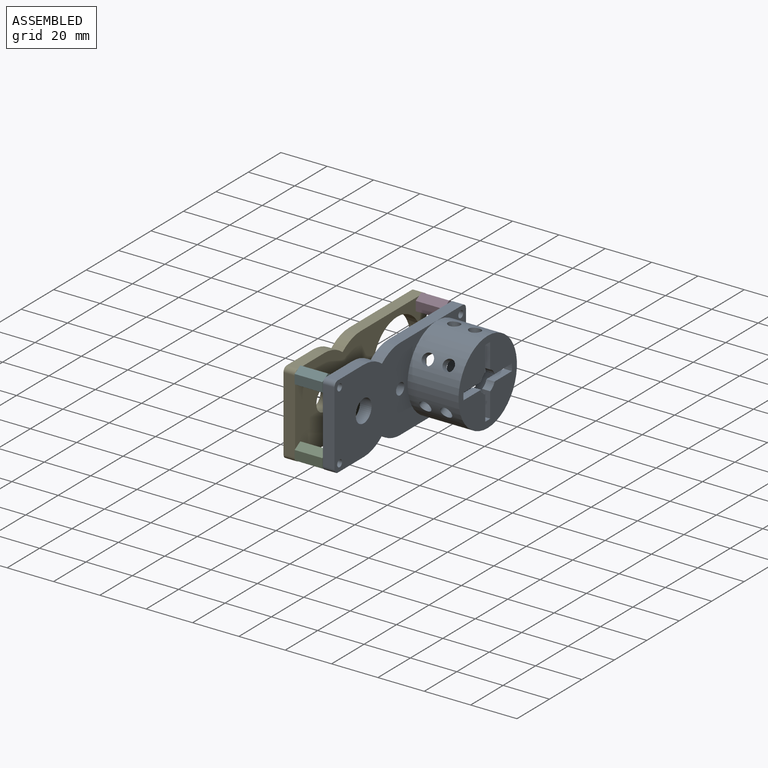
[diagram: assembled view]
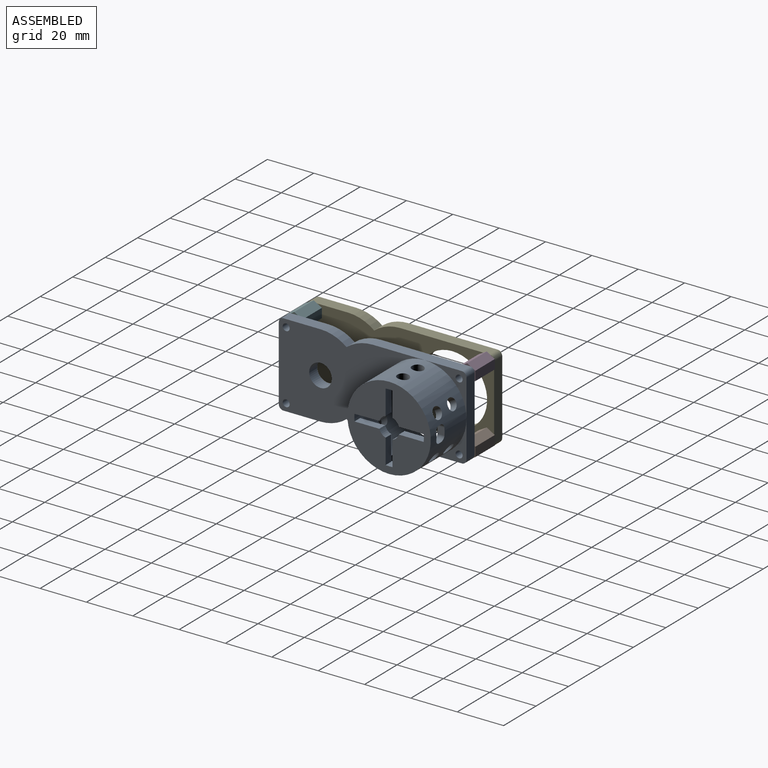
[diagram: assembled view, second angle]
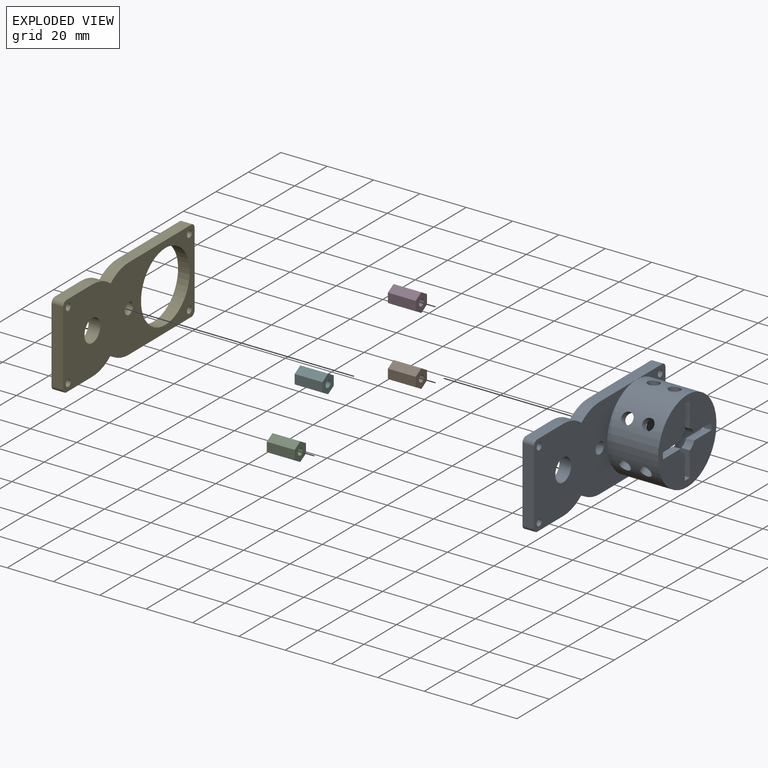
[diagram: exploded view]
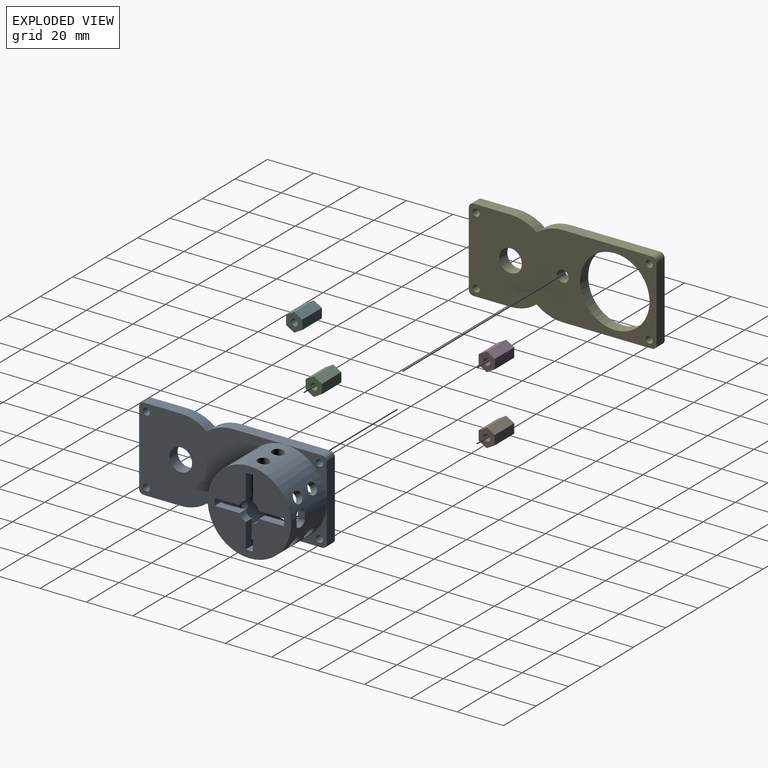
[diagram: exploded view, second angle]
ASSEMBLY  parts=6 mates=5
PART A: 64 faces, bbox 27x81x36 mm
  f0: plane 3.08x3mm, normal (-1,0,0), area 9mm2, adj f3,f21,f56,f57
  f1: plane 13.43x13.43mm, normal (-1,0,0), area 129.1mm2, adj f2,f29,f30,f31
  f2: cylinder r=15mm len=30mm, axis (-1,0,0), area 1977.1mm2, adj f1,f4,f5,f6,f27,f28,f31,f32
  f3: cylinder r=18mm len=36mm, axis (-1,0,0), area 2219.8mm2, adj f0,f6,f7,f8,f26,f41,f42,f43
  f4: plane 13.43x13.43mm, normal (-1,0,0), area 129.1mm2, adj f2,f32,f33,f34
  f5: plane 13.43x13.43mm, normal (-1,0,0), area 129.1mm2, adj f2,f38,f39,f40
  f6: plane 36x36mm, normal (1,0,0), area 827.5mm2, adj f2,f3,f21,f29,f30,f31,f32,f33
  f7: plane 18x18mm, normal (1,0,0), area 61.6mm2, adj f3,f17,f22,f24,f60
  f8: plane 18x18mm, normal (1,0,0), area 61.6mm2, adj f3,f9,f23,f24,f61
  f9: plane 38.5x5mm, normal (0,0,1), area 192.5mm2, adj f8,f10,f26,f27,f61
  f10: cylinder r=18mm len=11.25mm, axis (-1,0,0), area 60.8mm2, adj f9,f11,f26,f27
  f11: cylinder r=18mm len=11.25mm, axis (-1,0,0), area 60.8mm2, adj f10,f12,f26,f27
  f12: plane 16x5mm, normal (0,0,1), area 80mm2, adj f11,f26,f27,f62
  f13: plane 32x5mm, normal (0,-1,0), area 160mm2, adj f26,f27,f62,f63
  f14: plane 16x5mm, normal (0,0,-1), area 80mm2, adj f15,f26,f27,f63
  f15: cylinder r=18mm len=11.25mm, axis (-1,0,0), area 60.8mm2, adj f14,f16,f26,f27
  f16: cylinder r=18mm len=11.25mm, axis (-1,0,0), area 60.8mm2, adj f15,f17,f26,f27
  f17: plane 38.5x5mm, normal (0,0,-1), area 192.5mm2, adj f7,f16,f26,f27,f60
  f18: cylinder r=1.5mm len=5mm, axis (-1,0,0), area 47.1mm2, adj f26,f27
  f19: cylinder r=4.88mm len=9.75mm, axis (-1,0,0), area 153.2mm2, adj f26,f27
  f20: cylinder r=2.5mm len=5mm, axis (-1,0,0), area 78.5mm2, adj f26,f27
  f21: cylinder r=15mm len=3.5mm, axis (-1,0,0), area 10.5mm2, adj f0,f6,f29,f40
  f22: cylinder r=1.5mm len=5mm, axis (-1,0,0), area 47.1mm2, adj f7,f27
  f23: cylinder r=1.5mm len=5mm, axis (-1,0,0), area 47.1mm2, adj f8,f27
  f24: plane 32x5mm, normal (0,1,0), area 160mm2, adj f7,f8,f27,f60,f61
  f25: cylinder r=1.5mm len=5mm, axis (-1,0,0), area 47.1mm2, adj f26,f27
  f26: plane 63x36mm, normal (1,0,0), area 1592.5mm2, adj f3,f9,f10,f11,f12,f13,f14,f15
  f27: plane 81x36mm, normal (-1,0,0), area 2026.8mm2, adj f2,f9,f10,f11,f12,f13,f14,f15
  f28: plane 13.43x13.43mm, normal (-1,0,0), area 129.1mm2, adj f2,f35,f36,f37
  f29: plane 10.68x3.5mm, normal (0,0,-1), area 37.4mm2, adj f1,f6,f21,f30
  f30: cylinder r=4.5mm len=3.5mm, axis (1,0,0), area 14mm2, adj f1,f6,f29,f31
  f31: plane 10.68x3.5mm, normal (0,-1,0), area 37.4mm2, adj f1,f2,f6,f30
  f32: plane 10.68x3.5mm, normal (0,1,0), area 37.4mm2, adj f2,f4,f6,f33
  f33: cylinder r=4.5mm len=3.5mm, axis (1,0,0), area 14mm2, adj f4,f6,f32,f34
  f34: plane 10.68x3.5mm, normal (0,0,-1), area 37.4mm2, adj f2,f4,f6,f33
  f35: plane 10.68x3.5mm, normal (0,0,1), area 37.4mm2, adj f2,f6,f28,f36
  f36: cylinder r=4.5mm len=3.5mm, axis (1,0,0), area 14mm2, adj f6,f28,f35,f37
  f37: plane 10.68x3.5mm, normal (0,1,0), area 37.4mm2, adj f2,f6,f28,f36
  f38: plane 10.68x3.5mm, normal (0,-1,0), area 37.4mm2, adj f2,f5,f6,f39
  f39: cylinder r=4.5mm len=3.5mm, axis (1,0,0), area 14mm2, adj f5,f6,f38,f40
  f40: plane 10.68x3.5mm, normal (0,0,1), area 37.4mm2, adj f5,f6,f21,f39
  f41: cylinder r=2.5mm len=5mm, axis (0,0,1), area 47.6mm2, adj f2,f3
  f42: cylinder r=2.5mm len=6.1mm, axis (0,0.87,0.5), area 47.6mm2, adj f2,f3
  f43: cylinder r=2.5mm len=6.1mm, axis (0,-0.87,-0.5), area 47.6mm2, adj f2,f3
  f44: cylinder r=2.5mm len=5mm, axis (0,0,-1), area 47.6mm2, adj f2,f3
  f45: cylinder r=2.5mm len=6.1mm, axis (0,0.87,-0.5), area 47.6mm2, adj f2,f3
  f46: cylinder r=2.5mm len=6.1mm, axis (0,-0.87,0.5), area 47.6mm2, adj f2,f3
  f47: cylinder r=2.5mm len=6.1mm, axis (0,-0.87,-0.5), area 47.6mm2, adj f2,f3
  f48: cylinder r=2.5mm len=6.1mm, axis (0,0.87,-0.5), area 47.6mm2, adj f2,f3
  f49: cylinder r=2.5mm len=5mm, axis (0,0,-1), area 47.6mm2, adj f2,f3
  f50: cylinder r=2.5mm len=6.1mm, axis (0,0.87,0.5), area 47.6mm2, adj f2,f3
  f51: cylinder r=2.5mm len=5mm, axis (0,0,1), area 47.6mm2, adj f2,f3
  f52: cylinder r=2.5mm len=6.1mm, axis (0,-0.87,0.5), area 47.6mm2, adj f2,f3
  f53: plane 3.07x1mm, normal (0,0,-1), area 3.1mm2, adj f2,f3,f56,f59
  f54: plane 3.08x3mm, normal (1,0,0), area 9mm2, adj f2,f3,f58,f59
  f55: plane 3.07x1mm, normal (0,0,1), area 3.1mm2, adj f2,f3,f57,f58
  f56: cylinder r=2mm len=3.35mm, axis (0,1,0), area 9.6mm2, adj f0,f2,f3,f53
  f57: cylinder r=2mm len=3.35mm, axis (0,-1,0), area 9.6mm2, adj f0,f2,f3,f55
  f58: cylinder r=2mm len=3.35mm, axis (0,1,0), area 9.6mm2, adj f2,f3,f54,f55
  f59: cylinder r=2mm len=3.35mm, axis (0,-1,0), area 9.6mm2, adj f2,f3,f53,f54
  f60: cylinder r=2mm len=5mm, axis (-1,0,0), area 15.7mm2, adj f7,f17,f24,f27
  f61: cylinder r=2mm len=5mm, axis (1,0,0), area 15.7mm2, adj f8,f9,f24,f27
  f62: cylinder r=2mm len=5mm, axis (-1,0,0), area 15.7mm2, adj f12,f13,f26,f27
  f63: cylinder r=2mm len=5mm, axis (1,0,0), area 15.7mm2, adj f13,f14,f26,f27
PART B: 9 faces, bbox 12x7x8.1 mm
  f0: plane 12x3.5mm, normal (0,0.5,-0.87), area 48.5mm2, adj f1,f6,f7,f8
  f1: plane 12x4.04mm, normal (0,1,0), area 48.5mm2, adj f0,f2,f7,f8
  f2: plane 12x3.5mm, normal (0,0.5,0.87), area 48.5mm2, adj f1,f3,f7,f8
  f3: plane 12x3.5mm, normal (0,-0.5,0.87), area 48.5mm2, adj f2,f4,f7,f8
  f4: plane 12x4.04mm, normal (0,-1,0), area 48.5mm2, adj f3,f6,f7,f8
  f5: cylinder r=1.5mm len=12mm, axis (-1,0,0), area 113.1mm2, adj f7,f8
  f6: plane 12x3.5mm, normal (0,-0.5,-0.87), area 48.5mm2, adj f0,f4,f7,f8
  f7: plane 8.08x7mm, normal (1,0,0), area 35.3mm2, adj f0,f1,f2,f3,f4,f5,f6
  f8: plane 8.08x7mm, normal (-1,0,0), area 35.3mm2, adj f0,f1,f2,f3,f4,f5,f6
PART C: same geometry as B
PART D: same geometry as B
PART E: 23 faces, bbox 5x81x36 mm
  f0: plane 38.5x5mm, normal (0,0,1), area 192.5mm2, adj f1,f17,f18,f20
  f1: cylinder r=18mm len=11.25mm, axis (-1,0,0), area 60.8mm2, adj f0,f2,f17,f18
  f2: cylinder r=18mm len=11.25mm, axis (-1,0,0), area 60.8mm2, adj f1,f3,f17,f18
  f3: plane 16x5mm, normal (0,0,1), area 80mm2, adj f2,f17,f18,f21
  f4: plane 32x5mm, normal (0,-1,0), area 160mm2, adj f17,f18,f21,f22
  f5: plane 16x5mm, normal (0,0,-1), area 80mm2, adj f6,f17,f18,f22
  f6: cylinder r=18mm len=11.25mm, axis (-1,0,0), area 60.8mm2, adj f5,f7,f17,f18
  f7: cylinder r=18mm len=11.25mm, axis (-1,0,0), area 60.8mm2, adj f6,f8,f17,f18
  f8: plane 38.5x5mm, normal (0,0,-1), area 192.5mm2, adj f7,f17,f18,f19
  f9: cylinder r=1.5mm len=5mm, axis (-1,0,0), area 47.1mm2, adj f17,f18
  f10: cylinder r=4.88mm len=9.75mm, axis (-1,0,0), area 153.2mm2, adj f17,f18
  f11: cylinder r=2.5mm len=5mm, axis (-1,0,0), area 78.5mm2, adj f17,f18
  f12: cylinder r=1.5mm len=5mm, axis (-1,0,0), area 47.1mm2, adj f17,f18
  f13: cylinder r=1.5mm len=5mm, axis (-1,0,0), area 47.1mm2, adj f17,f18
  f14: cylinder r=15mm len=30mm, axis (-1,0,0), area 471.2mm2, adj f17,f18
  f15: plane 32x5mm, normal (0,1,0), area 160mm2, adj f17,f18,f19,f20
  f16: cylinder r=1.5mm len=5mm, axis (-1,0,0), area 47.1mm2, adj f17,f18
  f17: plane 81x36mm, normal (1,0,0), area 2026.8mm2, adj f0,f1,f2,f3,f4,f5,f6,f7
  f18: plane 81x36mm, normal (-1,0,0), area 2026.8mm2, adj f0,f1,f2,f3,f4,f5,f6,f7
  f19: cylinder r=2mm len=5mm, axis (-1,0,0), area 15.7mm2, adj f8,f15,f17,f18
  f20: cylinder r=2mm len=5mm, axis (1,0,0), area 15.7mm2, adj f0,f15,f17,f18
  f21: cylinder r=2mm len=5mm, axis (-1,0,0), area 15.7mm2, adj f3,f4,f17,f18
  f22: cylinder r=2mm len=5mm, axis (1,0,0), area 15.7mm2, adj f4,f5,f17,f18
PART F: same geometry as B
PLACE A t=(-92.01,-53.44,21.98)mm
PLACE B t=(-104.01,47.29,-28.01)mm
PLACE C t=(-104.01,-27.35,-28.01)mm
PLACE D t=(-104.01,47.29,1.63)mm
PLACE E t=(-109.01,-51.57,-41.5)mm
PLACE F t=(-104.01,-27.35,1.63)mm
MATE fastened B.f5 <-> A.f22  axis (1,0,0) through (-92.01,-16.12,7.16)mm
MATE fastened A.f25 <-> C.f5  axis (-1,0,0) through (-92.01,-90.75,7.16)mm
MATE fastened A.f23 <-> D.f5  axis (-1,0,0) through (-92.01,-16.12,36.8)mm
MATE fastened A.f18 <-> F.f5  axis (-1,0,0) through (-92.01,-90.75,36.8)mm
MATE fastened E.f13 <-> D.f5  axis (1,0,0) through (-104.01,-16.12,36.8)mm
